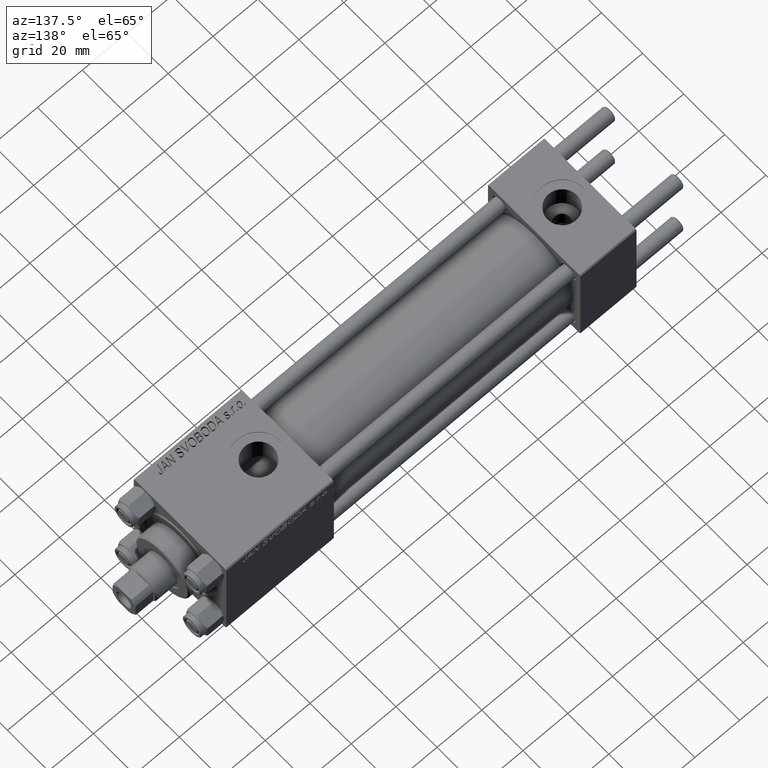
[diagram: clean part render]
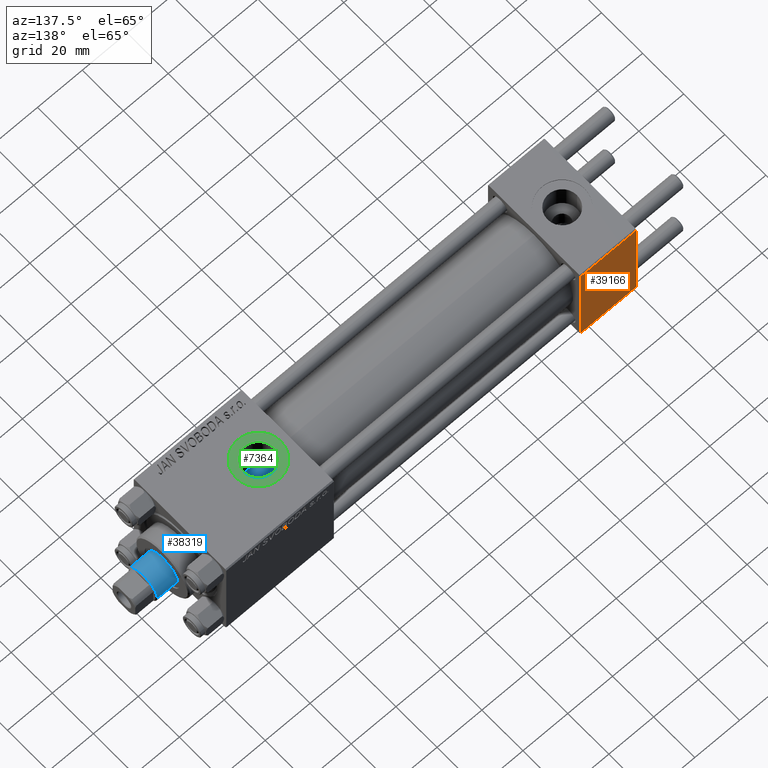
[diagram: same view with three faces highlighted in distinct colors, each labeled with its STEP entity id]
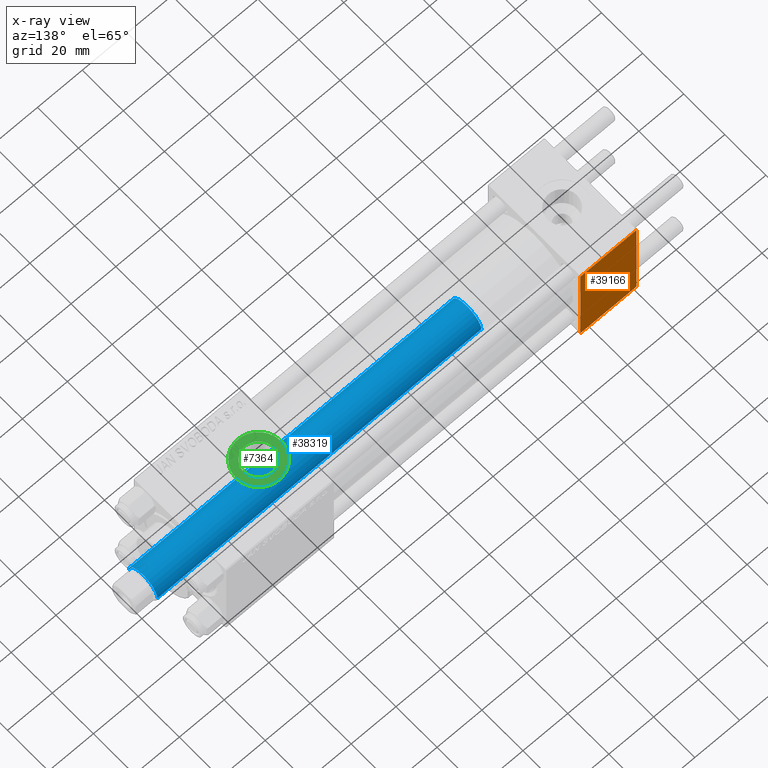
[diagram: x-ray of the same camera — body ghosted, the three highlighted faces saturated]
A machine part, auxiliary view with three faces highlighted in distinct colors.
The next image is the same camera in x-ray (body ghosted, the three faces saturated) — at least one of them is partly hidden behind the body in this view.
Their STEP definitions:

[orange] entity #39166 — the highlighted planar face has unit normal (0, 1, 0).
#3410 = FACE_OUTER_BOUND ( 'NONE', #44405, .T. ) ;
#10627 = CARTESIAN_POINT ( 'NONE',  ( 25.00000000000000000, 22.50000000000000000, 21.99999999999999645 ) ) ;
#10979 = DIRECTION ( 'NONE',  ( -0.000000000000000000, 1.000000000000000000, 0.000000000000000000 ) ) ;
#15379 = DIRECTION ( 'NONE',  ( 1.000000000000000000, 0.000000000000000000, 0.000000000000000000 ) ) ;
#16334 = VECTOR ( 'NONE', #34130, 1000.000000000000000 ) ;
#16684 = ORIENTED_EDGE ( 'NONE', *, *, #42616, .T. ) ;
#17698 = CARTESIAN_POINT ( 'NONE',  ( 0.000000000000000000, 22.50000000000000000, 22.50000000000000355 ) ) ;
#18659 = LINE ( 'NONE', #22953, #21546 ) ;
#20593 = CARTESIAN_POINT ( 'NONE',  ( 25.00000000000000000, 22.50000000000000000, -21.99999999999996803 ) ) ;
#21491 = LINE ( 'NONE', #17698, #48675 ) ;
#21546 = VECTOR ( 'NONE', #15379, 1000.000000000000000 ) ;
#22595 = ORIENTED_EDGE ( 'NONE', *, *, #26580, .F. ) ;
#22953 = CARTESIAN_POINT ( 'NONE',  ( 25.00000000000000000, 22.50000000000000000, 21.99999999999999645 ) ) ;
#23963 = DIRECTION ( 'NONE',  ( 0.000000000000000000, 0.000000000000000000, -1.000000000000000000 ) ) ;
#26373 = DIRECTION ( 'NONE',  ( 0.000000000000000000, -0.000000000000000000, 1.000000000000000000 ) ) ;
#26580 = EDGE_CURVE ( 'NONE', #38500, #49184, #21491, .T. ) ;
#26859 = PLANE ( 'NONE',  #29637 ) ;
#28816 = ORIENTED_EDGE ( 'NONE', *, *, #34891, .T. ) ;
#28947 = CARTESIAN_POINT ( 'NONE',  ( 0.000000000000000000, 22.50000000000000000, 21.99999999999999645 ) ) ;
#29637 = AXIS2_PLACEMENT_3D ( 'NONE', #45519, #10979, #26373 ) ;
#33072 = DIRECTION ( 'NONE',  ( 0.000000000000000000, 0.000000000000000000, -1.000000000000000000 ) ) ;
#34130 = DIRECTION ( 'NONE',  ( -1.000000000000000000, 0.000000000000000000, 0.000000000000000000 ) ) ;
#34701 = CARTESIAN_POINT ( 'NONE',  ( 0.000000000000000000, 22.50000000000000000, -21.99999999999996803 ) ) ;
#34891 = EDGE_CURVE ( 'NONE', #38500, #49499, #18659, .T. ) ;
#35243 = VERTEX_POINT ( 'NONE', #20593 ) ;
#38500 = VERTEX_POINT ( 'NONE', #28947 ) ;
#39166 = ADVANCED_FACE ( 'NONE', ( #3410 ), #26859, .T. ) ;
#39322 = LINE ( 'NONE', #40063, #42090 ) ;
#40063 = CARTESIAN_POINT ( 'NONE',  ( 25.00000000000000000, 22.50000000000000000, 22.50000000000000355 ) ) ;
#40938 = LINE ( 'NONE', #48771, #16334 ) ;
#42090 = VECTOR ( 'NONE', #23963, 1000.000000000000000 ) ;
#42616 = EDGE_CURVE ( 'NONE', #49499, #35243, #39322, .T. ) ;
#43936 = ORIENTED_EDGE ( 'NONE', *, *, #46835, .T. ) ;
#44405 = EDGE_LOOP ( 'NONE', ( #16684, #43936, #22595, #28816 ) ) ;
#45519 = CARTESIAN_POINT ( 'NONE',  ( 25.00000000000000000, 22.50000000000000000, 22.50000000000000355 ) ) ;
#46835 = EDGE_CURVE ( 'NONE', #35243, #49184, #40938, .T. ) ;
#48675 = VECTOR ( 'NONE', #33072, 1000.000000000000000 ) ;
#48771 = CARTESIAN_POINT ( 'NONE',  ( 25.00000000000000000, 22.50000000000000000, -21.99999999999998224 ) ) ;
#49184 = VERTEX_POINT ( 'NONE', #34701 ) ;
#49499 = VERTEX_POINT ( 'NONE', #10627 ) ;

[blue] entity #38319 — the highlighted cylindrical surface (edge-blend (fillet) strip) has radius 7 mm, axis along (-1, 0, 0).
#1208 = EDGE_CURVE ( 'NONE', #30051, #15221, #27391, .T. ) ;
#2614 = ORIENTED_EDGE ( 'NONE', *, *, #7161, .T. ) ;
#3165 = VERTEX_POINT ( 'NONE', #45840 ) ;
#4233 = CARTESIAN_POINT ( 'NONE',  ( 7.000000000000000000, 8.572527594031473190E-16, 175.0000000000000000 ) ) ;
#7161 = EDGE_CURVE ( 'NONE', #15221, #33308, #36800, .T. ) ;
#7303 = DIRECTION ( 'NONE',  ( -1.000000000000000000, 0.000000000000000000, 0.000000000000000000 ) ) ;
#8916 = EDGE_CURVE ( 'NONE', #3165, #30051, #42467, .T. ) ;
#9960 = DIRECTION ( 'NONE',  ( 1.000000000000000000, 0.000000000000000000, 0.000000000000000000 ) ) ;
#10216 = CARTESIAN_POINT ( 'NONE',  ( 0.000000000000000000, 0.000000000000000000, 30.00000000000000000 ) ) ;
#11499 = CARTESIAN_POINT ( 'NONE',  ( -7.000000000000000000, 0.000000000000000000, 175.0000000000000000 ) ) ;
#11908 = DIRECTION ( 'NONE',  ( 0.000000000000000000, 0.000000000000000000, -1.000000000000000000 ) ) ;
#15221 = VERTEX_POINT ( 'NONE', #35234 ) ;
#15449 = ORIENTED_EDGE ( 'NONE', *, *, #26170, .F. ) ;
#15551 = DIRECTION ( 'NONE',  ( -0.000000000000000000, -0.000000000000000000, -1.000000000000000000 ) ) ;
#18595 = CARTESIAN_POINT ( 'NONE',  ( -7.000000000000000000, 0.000000000000000000, 174.4999999999999716 ) ) ;
#20604 = VECTOR ( 'NONE', #15551, 1000.000000000000000 ) ;
#20746 = AXIS2_PLACEMENT_3D ( 'NONE', #42900, #11908, #30563 ) ;
#22918 = LINE ( 'NONE', #4233, #38161 ) ;
#22958 = FACE_OUTER_BOUND ( 'NONE', #23418, .T. ) ;
#23418 = EDGE_LOOP ( 'NONE', ( #15449, #29720, #44365, #2614 ) ) ;
#26170 = EDGE_CURVE ( 'NONE', #3165, #33308, #22918, .T. ) ;
#26447 = DIRECTION ( 'NONE',  ( -0.000000000000000000, -0.000000000000000000, -1.000000000000000000 ) ) ;
#27391 = LINE ( 'NONE', #11499, #20604 ) ;
#29720 = ORIENTED_EDGE ( 'NONE', *, *, #8916, .T. ) ;
#30000 = CYLINDRICAL_SURFACE ( 'NONE', #36020, 7.000000000000000000 ) ;
#30051 = VERTEX_POINT ( 'NONE', #18595 ) ;
#30563 = DIRECTION ( 'NONE',  ( 1.000000000000000000, 0.000000000000000000, 0.000000000000000000 ) ) ;
#33308 = VERTEX_POINT ( 'NONE', #44814 ) ;
#35234 = CARTESIAN_POINT ( 'NONE',  ( -7.000000000000000000, 0.000000000000000000, 30.00000000000000000 ) ) ;
#36020 = AXIS2_PLACEMENT_3D ( 'NONE', #41841, #38318, #7303 ) ;
#36800 = CIRCLE ( 'NONE', #46474, 7.000000000000000000 ) ;
#38161 = VECTOR ( 'NONE', #26447, 1000.000000000000000 ) ;
#38319 = ADVANCED_FACE ( 'NONE', ( #22958 ), #30000, .T. ) ;
#38318 = DIRECTION ( 'NONE',  ( -0.000000000000000000, -0.000000000000000000, -1.000000000000000000 ) ) ;
#40459 = DIRECTION ( 'NONE',  ( 0.000000000000000000, 0.000000000000000000, 1.000000000000000000 ) ) ;
#41841 = CARTESIAN_POINT ( 'NONE',  ( 0.000000000000000000, 0.000000000000000000, 175.0000000000000000 ) ) ;
#42467 = CIRCLE ( 'NONE', #20746, 7.000000000000000000 ) ;
#42900 = CARTESIAN_POINT ( 'NONE',  ( 0.000000000000000000, 0.000000000000000000, 174.4999999999999716 ) ) ;
#44365 = ORIENTED_EDGE ( 'NONE', *, *, #1208, .T. ) ;
#44814 = CARTESIAN_POINT ( 'NONE',  ( 7.000000000000000000, 8.572527594031473190E-16, 30.00000000000000000 ) ) ;
#45840 = CARTESIAN_POINT ( 'NONE',  ( 7.000000000000000000, 8.572527594031473190E-16, 174.4999999999999716 ) ) ;
#46474 = AXIS2_PLACEMENT_3D ( 'NONE', #10216, #40459, #9960 ) ;

[green] entity #7364 — the highlighted planar face has unit normal (0, 0, 1).
#2221 = CIRCLE ( 'NONE', #16704, 10.00000000000000888 ) ;
#3093 = DIRECTION ( 'NONE',  ( 1.000000000000000000, 0.000000000000000000, 0.000000000000000000 ) ) ;
#3291 = AXIS2_PLACEMENT_3D ( 'NONE', #37632, #30317, #3093 ) ;
#3476 = CARTESIAN_POINT ( 'NONE',  ( 154.5800000000000125, -4.398352834091458297E-15, 22.29999999999999716 ) ) ;
#6192 = CIRCLE ( 'NONE', #6995, 6.580000000000002736 ) ;
#6281 = EDGE_LOOP ( 'NONE', ( #47246, #37136 ) ) ;
#6995 = AXIS2_PLACEMENT_3D ( 'NONE', #33349, #44437, #48732 ) ;
#7188 = CARTESIAN_POINT ( 'NONE',  ( 148.0000000000000284, -5.204170427930420494E-15, 22.29999999999999716 ) ) ;
#7364 = ADVANCED_FACE ( 'NONE', ( #31608, #12445 ), #43200, .T. ) ;
#7916 = CARTESIAN_POINT ( 'NONE',  ( 158.0000000000000284, -5.204170427930420494E-15, 22.29999999999999716 ) ) ;
#8445 = EDGE_CURVE ( 'NONE', #19378, #46705, #2221, .T. ) ;
#8673 = CARTESIAN_POINT ( 'NONE',  ( 148.0000000000000284, -5.204170427930420494E-15, 22.29999999999999716 ) ) ;
#9249 = CARTESIAN_POINT ( 'NONE',  ( 141.4200000000000159, -5.204170427930420494E-15, 22.29999999999999716 ) ) ;
#11486 = EDGE_LOOP ( 'NONE', ( #17311, #47442 ) ) ;
#12445 = FACE_OUTER_BOUND ( 'NONE', #11486, .T. ) ;
#13909 = AXIS2_PLACEMENT_3D ( 'NONE', #22799, #41693, #49521 ) ;
#14488 = EDGE_CURVE ( 'NONE', #26319, #15961, #17763, .T. ) ;
#15961 = VERTEX_POINT ( 'NONE', #3476 ) ;
#16704 = AXIS2_PLACEMENT_3D ( 'NONE', #7188, #33918, #49059 ) ;
#17311 = ORIENTED_EDGE ( 'NONE', *, *, #8445, .T. ) ;
#17763 = CIRCLE ( 'NONE', #3291, 6.580000000000002736 ) ;
#19378 = VERTEX_POINT ( 'NONE', #7916 ) ;
#22799 = CARTESIAN_POINT ( 'NONE',  ( 148.0000000000000284, -5.204170427930420494E-15, 22.29999999999999716 ) ) ;
#24060 = DIRECTION ( 'NONE',  ( 0.000000000000000000, 0.000000000000000000, 1.000000000000000000 ) ) ;
#26319 = VERTEX_POINT ( 'NONE', #9249 ) ;
#30317 = DIRECTION ( 'NONE',  ( -0.000000000000000000, -0.000000000000000000, -1.000000000000000000 ) ) ;
#31608 = FACE_BOUND ( 'NONE', #6281, .T. ) ;
#33349 = CARTESIAN_POINT ( 'NONE',  ( 148.0000000000000284, -5.204170427930420494E-15, 22.29999999999999716 ) ) ;
#33918 = DIRECTION ( 'NONE',  ( 0.000000000000000000, 0.000000000000000000, 1.000000000000000000 ) ) ;
#35645 = CIRCLE ( 'NONE', #13909, 10.00000000000000888 ) ;
#36914 = EDGE_CURVE ( 'NONE', #15961, #26319, #6192, .T. ) ;
#37136 = ORIENTED_EDGE ( 'NONE', *, *, #36914, .T. ) ;
#37632 = CARTESIAN_POINT ( 'NONE',  ( 148.0000000000000284, -5.204170427930420494E-15, 22.29999999999999716 ) ) ;
#39412 = DIRECTION ( 'NONE',  ( 1.000000000000000000, 0.000000000000000000, -0.000000000000000000 ) ) ;
#41693 = DIRECTION ( 'NONE',  ( 0.000000000000000000, 0.000000000000000000, 1.000000000000000000 ) ) ;
#43200 = PLANE ( 'NONE',  #49689 ) ;
#44437 = DIRECTION ( 'NONE',  ( -0.000000000000000000, -0.000000000000000000, -1.000000000000000000 ) ) ;
#46705 = VERTEX_POINT ( 'NONE', #47282 ) ;
#46886 = EDGE_CURVE ( 'NONE', #46705, #19378, #35645, .T. ) ;
#47246 = ORIENTED_EDGE ( 'NONE', *, *, #14488, .T. ) ;
#47282 = CARTESIAN_POINT ( 'NONE',  ( 138.0000000000000000, -3.979523628783065857E-15, 22.29999999999999716 ) ) ;
#47442 = ORIENTED_EDGE ( 'NONE', *, *, #46886, .T. ) ;
#48732 = DIRECTION ( 'NONE',  ( 1.000000000000000000, 0.000000000000000000, 0.000000000000000000 ) ) ;
#49059 = DIRECTION ( 'NONE',  ( 1.000000000000000000, 0.000000000000000000, 0.000000000000000000 ) ) ;
#49521 = DIRECTION ( 'NONE',  ( 1.000000000000000000, 0.000000000000000000, 0.000000000000000000 ) ) ;
#49689 = AXIS2_PLACEMENT_3D ( 'NONE', #8673, #24060, #39412 ) ;